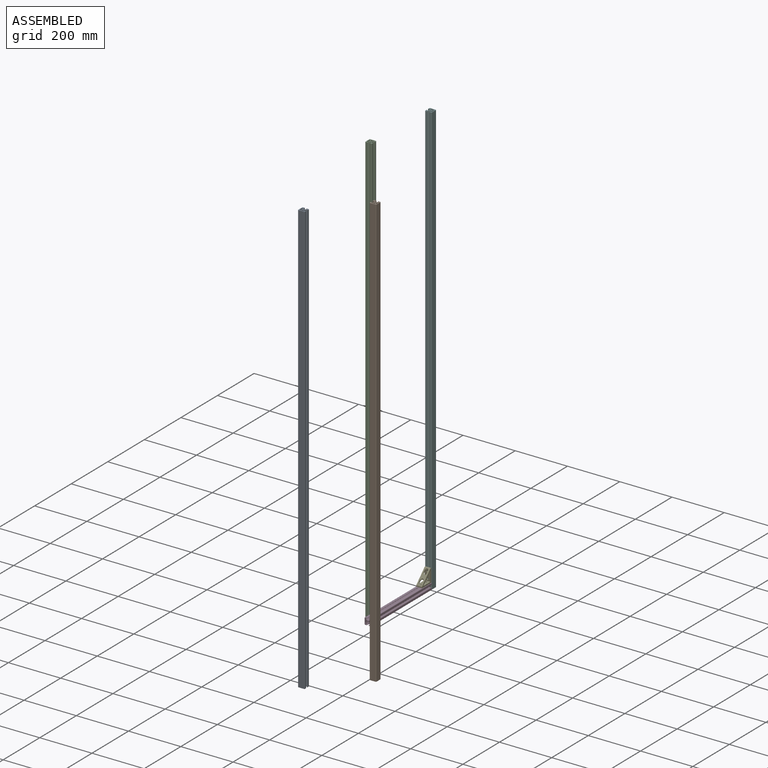
[diagram: assembled view]
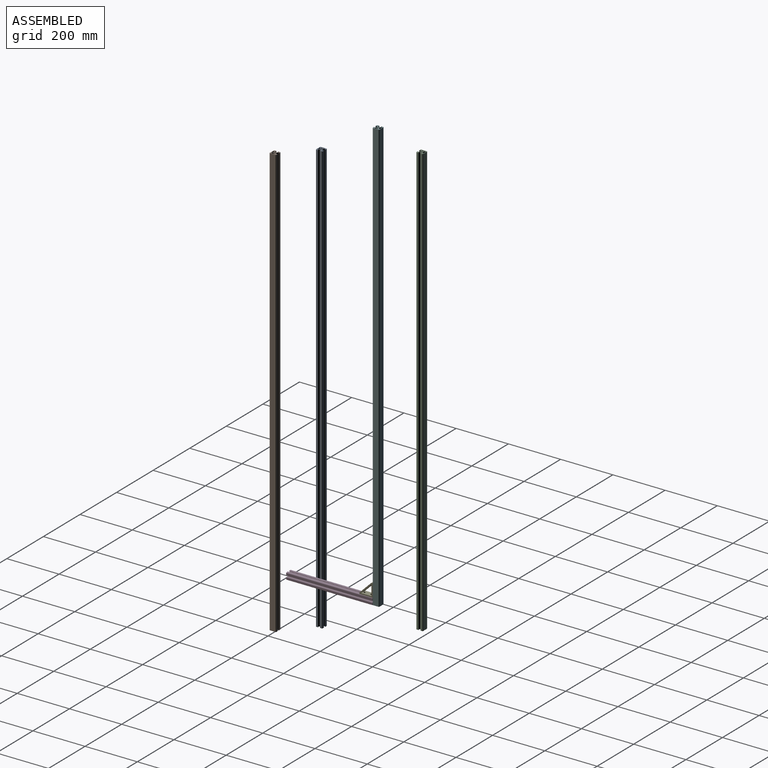
[diagram: assembled view, second angle]
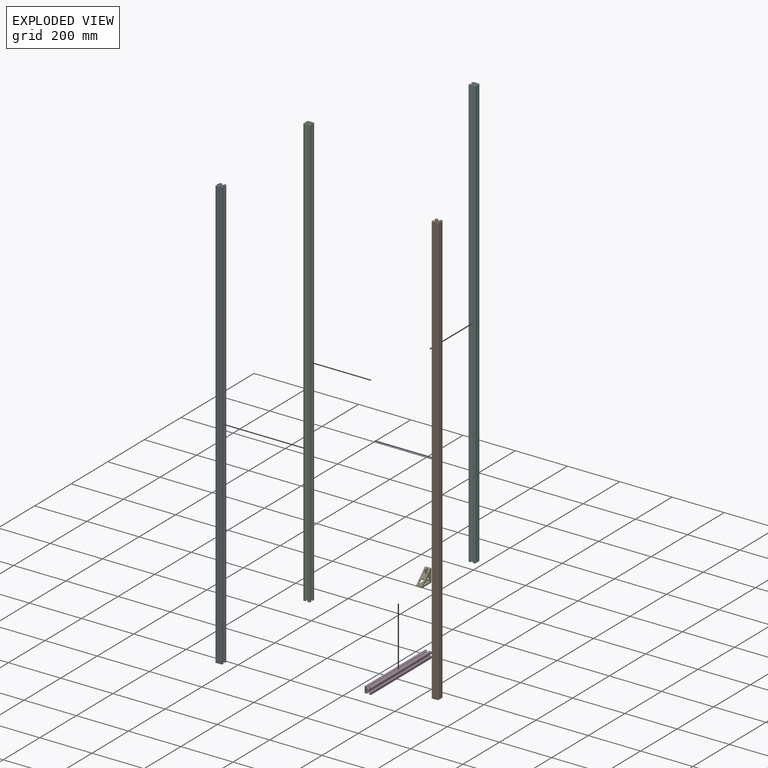
[diagram: exploded view]
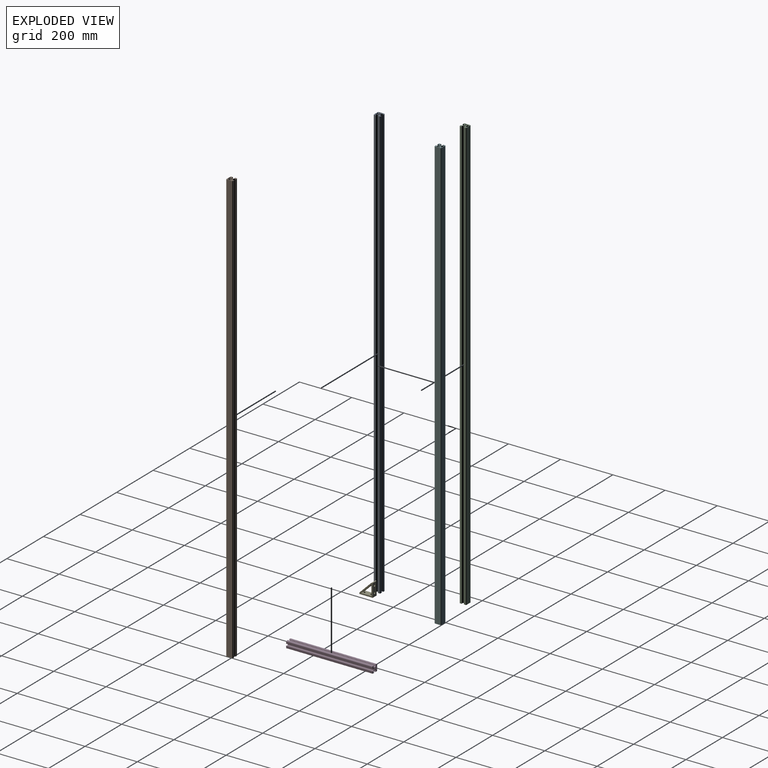
[diagram: exploded view, second angle]
ASSEMBLY  parts=6 mates=2
PART A: 66 faces, bbox 25.4x1651x25.4 mm
  f0: plane 1651x21.18mm, normal (-1,0,0), area 34974.8mm2, adj f6,f7,f64,f65
  f1: plane 1651x6.24mm, normal (0,0,1), area 10295.6mm2, adj f7,f8,f64,f65
  f2: plane 1651x6.24mm, normal (0,0,1), area 10294.7mm2, adj f9,f10,f64,f65
  f3: plane 1651x6.24mm, normal (1,0,0), area 10295.5mm2, adj f10,f11,f64,f65
  f4: plane 1651x6.24mm, normal (1,0,0), area 10295.5mm2, adj f12,f13,f64,f65
  f5: plane 1651x21.18mm, normal (0,0,-1), area 34974.1mm2, adj f6,f13,f64,f65
  f6: cylinder r=2.11mm len=1651mm, axis (0,-1,0), area 5467.4mm2, adj f0,f5,f64,f65
  f7: cylinder r=2.11mm len=1651mm, axis (0,-1,0), area 5467.4mm2, adj f0,f1,f64,f65
  f8: cylinder r=1.1mm len=1651mm, axis (0,-1,0), area 5730.9mm2, adj f1,f18,f64,f65
  f9: cylinder r=1.1mm len=1651mm, axis (0,-1,0), area 5730.9mm2, adj f2,f26,f64,f65
  f10: cylinder r=2.11mm len=1651mm, axis (0,-1,0), area 5467.4mm2, adj f2,f3,f64,f65
  f11: cylinder r=1.1mm len=1651mm, axis (0,-1,0), area 5730.9mm2, adj f3,f27,f64,f65
  f12: cylinder r=1.1mm len=1651mm, axis (0,-1,0), area 5730.9mm2, adj f4,f35,f64,f65
  f13: cylinder r=2.11mm len=1651mm, axis (0,-1,0), area 5467.4mm2, adj f4,f5,f64,f65
  f14: cylinder r=2.6mm len=1651mm, axis (0,-1,0), area 4649.9mm2, adj f53,f54,f64,f65
  f15: cylinder r=2.6mm len=1651mm, axis (0,-1,0), area 4649.9mm2, adj f56,f57,f64,f65
  f16: cylinder r=2.6mm len=1651mm, axis (0,-1,0), area 4649.9mm2, adj f59,f60,f64,f65
  f17: cylinder r=2.6mm len=1651mm, axis (0,-1,0), area 4649.9mm2, adj f62,f63,f64,f65
  f18: plane 1651x2.12mm, normal (0,0,-1), area 3498.5mm2, adj f8,f19,f64,f65
  f19: cylinder r=1.02mm len=1651mm, axis (0,-1,0), area 3952.3mm2, adj f18,f20,f64,f65
  f20: plane 1651x3.31mm, normal (0.71,0,0.71), area 7725.7mm2, adj f19,f21,f64,f65
  f21: cylinder r=3.17mm len=1651mm, axis (0,-1,0), area 4117mm2, adj f20,f22,f64,f65
  f22: plane 1651x3.28mm, normal (0,0,1), area 5413.9mm2, adj f21,f23,f64,f65
  f23: cylinder r=3.17mm len=1651mm, axis (0,-1,0), area 4117mm2, adj f22,f24,f64,f65
  f24: plane 1651x3.31mm, normal (-0.71,0,0.71), area 7725.7mm2, adj f23,f25,f64,f65
  f25: cylinder r=1.02mm len=1651mm, axis (0,-1,0), area 3952.3mm2, adj f24,f26,f64,f65
  f26: plane 1651x2.12mm, normal (0,0,-1), area 3498.3mm2, adj f9,f25,f64,f65
  f27: plane 1651x2.12mm, normal (-1,0,0), area 3497.5mm2, adj f11,f28,f64,f65
  f28: cylinder r=1.02mm len=1651mm, axis (0,-1,0), area 3952.3mm2, adj f27,f29,f64,f65
  f29: plane 1651x3.31mm, normal (0.71,0,-0.71), area 7724.5mm2, adj f28,f30,f64,f65
  f30: cylinder r=3.17mm len=1651mm, axis (0,-1,0), area 4117mm2, adj f29,f31,f64,f65
  f31: plane 1651x3.28mm, normal (1,0,0), area 5413.9mm2, adj f30,f32,f64,f65
  f32: cylinder r=3.17mm len=1651mm, axis (0,-1,0), area 4117mm2, adj f31,f33,f64,f65
  f33: plane 1651x3.31mm, normal (0.71,0,0.71), area 7724.5mm2, adj f32,f34,f64,f65
  f34: cylinder r=1.02mm len=1651mm, axis (0,-1,0), area 3952.3mm2, adj f33,f35,f64,f65
  f35: plane 1651x2.12mm, normal (-1,0,0), area 3497.7mm2, adj f12,f34,f64,f65
  f36: cylinder r=3.17mm len=1651mm, axis (0,-1,0), area 4117mm2, adj f37,f43,f64,f65
  f37: plane 1651x3.28mm, normal (-1,0,0), area 5413.5mm2, adj f36,f38,f64,f65
  f38: cylinder r=3.17mm len=1651mm, axis (0,-1,0), area 4117mm2, adj f37,f39,f64,f65
  f39: plane 1651x3.31mm, normal (-0.71,0,0.71), area 7725.3mm2, adj f38,f40,f64,f65
  f40: cylinder r=1.02mm len=1651mm, axis (0,-1,0), area 3952.3mm2, adj f39,f41,f64,f65
  f41: plane 1651x12.95mm, normal (1,0,0), area 21379.8mm2, adj f40,f42,f64,f65
  f42: cylinder r=1.02mm len=1651mm, axis (0,-1,0), area 3952.3mm2, adj f41,f43,f64,f65
  f43: plane 1651x3.31mm, normal (-0.71,0,-0.71), area 7725.3mm2, adj f36,f42,f64,f65
  f44: cylinder r=1.02mm len=1651mm, axis (0,-1,0), area 3952.3mm2, adj f45,f51,f64,f65
  f45: plane 1651x12.95mm, normal (0,0,1), area 21379.8mm2, adj f44,f46,f64,f65
  f46: cylinder r=1.02mm len=1651mm, axis (0,-1,0), area 3952.3mm2, adj f45,f47,f64,f65
  f47: plane 1651x3.31mm, normal (0.71,0,-0.71), area 7725.3mm2, adj f46,f48,f64,f65
  f48: cylinder r=3.17mm len=1651mm, axis (0,-1,0), area 4117mm2, adj f47,f49,f64,f65
  f49: plane 1651x3.28mm, normal (0,0,-1), area 5413.5mm2, adj f48,f50,f64,f65
  f50: cylinder r=3.17mm len=1651mm, axis (0,-1,0), area 4117mm2, adj f49,f51,f64,f65
  f51: plane 1651x3.31mm, normal (-0.71,0,-0.71), area 7725.3mm2, adj f44,f50,f64,f65
  f52: cylinder r=0.64mm len=1651mm, axis (0,-1,0), area 3549.9mm2, adj f53,f63,f64,f65
  f53: plane 1651x0.63mm, normal (0.71,0,0.71), area 1467.7mm2, adj f14,f52,f64,f65
  f54: plane 1651x0.63mm, normal (-0.71,0,0.71), area 1467.7mm2, adj f14,f55,f64,f65
  f55: cylinder r=0.64mm len=1651mm, axis (0,-1,0), area 3549.9mm2, adj f54,f56,f64,f65
  f56: plane 1651x0.63mm, normal (0.71,0,-0.71), area 1467.7mm2, adj f15,f55,f64,f65
  f57: plane 1651x0.63mm, normal (0.71,0,0.71), area 1467.7mm2, adj f15,f58,f64,f65
  f58: cylinder r=0.64mm len=1651mm, axis (0,-1,0), area 3549.9mm2, adj f57,f59,f64,f65
  f59: plane 1651x0.63mm, normal (-0.71,0,-0.71), area 1467.7mm2, adj f16,f58,f64,f65
  f60: plane 1651x0.63mm, normal (0.71,0,-0.71), area 1467.7mm2, adj f16,f61,f64,f65
  f61: cylinder r=0.64mm len=1651mm, axis (0,-1,0), area 3549.9mm2, adj f60,f62,f64,f65
  f62: plane 1651x0.63mm, normal (-0.71,0,0.71), area 1467.7mm2, adj f17,f61,f64,f65
  f63: plane 1651x0.63mm, normal (-0.71,0,-0.71), area 1467.7mm2, adj f17,f52,f64,f65
  f64: plane 25.4x25.4mm, normal (0,1,0), area 310.1mm2, adj f0,f1,f2,f3,f4,f5,f6,f7
  f65: plane 25.4x25.4mm, normal (0,-1,0), area 310.1mm2, adj f0,f1,f2,f3,f4,f5,f6,f7
PART B: same geometry as A
PART C: same geometry as A
PART D: 70 faces, bbox 25.4x330.2x25.4 mm
  f0: cylinder r=3.17mm len=330.2mm, axis (0,-1,0), area 823.4mm2, adj f1,f43,f44,f69
  f1: plane 330.2x3.28mm, normal (0,0,-1), area 1082.8mm2, adj f0,f2,f44,f69
  f2: cylinder r=3.17mm len=330.2mm, axis (0,-1,0), area 823.4mm2, adj f1,f3,f44,f69
  f3: plane 330.2x3.31mm, normal (0.71,0,-0.71), area 1545.1mm2, adj f2,f4,f44,f69
  f4: cylinder r=1.02mm len=330.2mm, axis (0,-1,0), area 790.5mm2, adj f3,f5,f44,f69
  f5: plane 330.2x2.12mm, normal (0,0,1), area 699.6mm2, adj f4,f6,f44,f69
  f6: cylinder r=1.1mm len=330.2mm, axis (0,-1,0), area 1146.2mm2, adj f5,f7,f44,f69
  f7: plane 330.2x6.24mm, normal (0,0,-1), area 2059mm2, adj f6,f8,f44,f69
  f8: cylinder r=2.11mm len=330.2mm, axis (0,-1,0), area 1093.5mm2, adj f7,f9,f44,f69
  f9: plane 330.2x21.18mm, normal (-1,0,0), area 6994.8mm2, adj f8,f10,f44,f69
  f10: cylinder r=2.11mm len=330.2mm, axis (0,-1,0), area 1093.5mm2, adj f9,f11,f44,f69
  f11: plane 330.2x6.24mm, normal (0,0,1), area 2059mm2, adj f10,f12,f44,f69
  f12: cylinder r=1.1mm len=330.2mm, axis (0,-1,0), area 1146.2mm2, adj f11,f13,f44,f69
  f13: plane 330.2x2.12mm, normal (0,0,-1), area 699.6mm2, adj f12,f14,f44,f69
  f14: cylinder r=1.02mm len=330.2mm, axis (0,-1,0), area 790.5mm2, adj f13,f15,f44,f69
  f15: plane 330.2x3.31mm, normal (0.71,0,0.71), area 1545.2mm2, adj f14,f16,f44,f69
  f16: cylinder r=3.17mm len=330.2mm, axis (0,-1,0), area 823.4mm2, adj f15,f17,f44,f69
  f17: plane 330.2x3.28mm, normal (0,0,1), area 1082.7mm2, adj f16,f18,f44,f69
  f18: cylinder r=3.17mm len=330.2mm, axis (0,-1,0), area 823.4mm2, adj f17,f19,f44,f69
  f19: plane 330.2x3.31mm, normal (-0.71,0,0.71), area 1545.2mm2, adj f18,f20,f44,f69
  f20: cylinder r=1.02mm len=330.2mm, axis (0,-1,0), area 790.5mm2, adj f19,f21,f44,f69
  f21: plane 330.2x2.12mm, normal (0,0,-1), area 699.7mm2, adj f20,f22,f44,f69
  f22: cylinder r=1.1mm len=330.2mm, axis (0,-1,0), area 1146.2mm2, adj f21,f23,f44,f69
  f23: plane 330.2x6.24mm, normal (0,0,1), area 2059mm2, adj f22,f24,f44,f69
  f24: cylinder r=2.11mm len=330.2mm, axis (0,-1,0), area 1093.5mm2, adj f23,f25,f44,f69
  f25: plane 330.2x6.24mm, normal (1,0,0), area 2059mm2, adj f24,f26,f44,f69
  f26: cylinder r=1.1mm len=330.2mm, axis (0,-1,0), area 1146.2mm2, adj f25,f27,f44,f69
  f27: plane 330.2x2.12mm, normal (-1,0,0), area 699.6mm2, adj f26,f28,f44,f69
  f28: cylinder r=1.02mm len=330.2mm, axis (0,-1,0), area 790.5mm2, adj f27,f29,f44,f69
  f29: plane 330.2x3.31mm, normal (0.71,0,-0.71), area 1545.1mm2, adj f28,f30,f44,f69
  f30: cylinder r=3.17mm len=330.2mm, axis (0,-1,0), area 823.4mm2, adj f29,f31,f44,f69
  f31: plane 330.2x3.28mm, normal (1,0,0), area 1082.8mm2, adj f30,f32,f44,f69
  f32: cylinder r=3.17mm len=330.2mm, axis (0,-1,0), area 823.4mm2, adj f31,f33,f44,f69
  f33: plane 330.2x3.31mm, normal (0.71,0,0.71), area 1545.1mm2, adj f32,f34,f44,f69
  f34: cylinder r=1.02mm len=330.2mm, axis (0,-1,0), area 790.5mm2, adj f33,f35,f44,f69
  f35: plane 330.2x2.12mm, normal (-1,0,0), area 699.6mm2, adj f34,f36,f44,f69
  f36: cylinder r=1.1mm len=330.2mm, axis (0,-1,0), area 1146.2mm2, adj f35,f37,f44,f69
  f37: plane 330.2x6.24mm, normal (1,0,0), area 2059mm2, adj f36,f38,f44,f69
  f38: cylinder r=2.11mm len=330.2mm, axis (0,-1,0), area 1093.5mm2, adj f37,f39,f44,f69
  f39: plane 330.2x6.24mm, normal (0,0,-1), area 2059mm2, adj f38,f40,f44,f69
  f40: cylinder r=1.1mm len=330.2mm, axis (0,-1,0), area 1146.2mm2, adj f39,f41,f44,f69
  f41: plane 330.2x2.12mm, normal (0,0,1), area 699.6mm2, adj f40,f42,f44,f69
  f42: cylinder r=1.02mm len=330.2mm, axis (0,-1,0), area 790.5mm2, adj f41,f43,f44,f69
  f43: plane 330.2x3.31mm, normal (-0.71,0,-0.71), area 1545.1mm2, adj f0,f42,f44,f69
  f44: plane 25.4x25.4mm, normal (0,-1,0), area 294.7mm2, adj f0,f1,f2,f3,f4,f5,f6,f7
  f45: cylinder r=3.17mm len=330.2mm, axis (0,-1,0), area 823.4mm2, adj f44,f46,f52,f69
  f46: plane 330.2x3.31mm, normal (-0.71,0,0.71), area 1545.1mm2, adj f44,f45,f47,f69
  f47: cylinder r=1.02mm len=330.2mm, axis (0,-1,0), area 790.6mm2, adj f44,f46,f48,f69
  f48: plane 330.2x12.95mm, normal (1,0,0), area 4276mm2, adj f44,f47,f49,f69
  f49: cylinder r=1.02mm len=330.2mm, axis (0,-1,0), area 790.6mm2, adj f44,f48,f50,f69
  f50: plane 330.2x3.31mm, normal (-0.71,0,-0.71), area 1545.1mm2, adj f44,f49,f51,f69
  f51: cylinder r=3.17mm len=330.2mm, axis (0,-1,0), area 823.4mm2, adj f44,f50,f52,f69
  f52: plane 330.2x3.28mm, normal (-1,0,0), area 1082.9mm2, adj f44,f45,f51,f69
  f53: cylinder r=0.64mm len=330.2mm, axis (0,-1,0), area 710mm2, adj f44,f54,f68,f69
  f54: plane 330.2x0.63mm, normal (0.71,0,0.71), area 293.5mm2, adj f44,f53,f55,f69
  f55: cylinder r=2.6mm len=330.2mm, axis (0,-1,0), area 930mm2, adj f44,f54,f56,f69
  f56: plane 330.2x0.63mm, normal (-0.71,0,0.71), area 293.5mm2, adj f44,f55,f57,f69
  f57: cylinder r=0.64mm len=330.2mm, axis (0,-1,0), area 710mm2, adj f44,f56,f58,f69
  f58: plane 330.2x0.63mm, normal (0.71,0,-0.71), area 293.5mm2, adj f44,f57,f59,f69
  f59: cylinder r=2.6mm len=330.2mm, axis (0,-1,0), area 930mm2, adj f44,f58,f60,f69
  f60: plane 330.2x0.63mm, normal (0.71,0,0.71), area 293.5mm2, adj f44,f59,f61,f69
  f61: cylinder r=0.64mm len=330.2mm, axis (0,-1,0), area 710mm2, adj f44,f60,f62,f69
  f62: plane 330.2x0.63mm, normal (-0.71,0,-0.71), area 293.5mm2, adj f44,f61,f63,f69
  f63: cylinder r=2.6mm len=330.2mm, axis (0,-1,0), area 930mm2, adj f44,f62,f64,f69
  f64: plane 330.2x0.63mm, normal (0.71,0,-0.71), area 293.5mm2, adj f44,f63,f65,f69
  f65: cylinder r=0.64mm len=330.2mm, axis (0,-1,0), area 710mm2, adj f44,f64,f66,f69
  f66: plane 330.2x0.63mm, normal (-0.71,0,0.71), area 293.5mm2, adj f44,f65,f67,f69
  f67: cylinder r=2.6mm len=330.2mm, axis (0,-1,0), area 930mm2, adj f44,f66,f68,f69
  f68: plane 330.2x0.63mm, normal (-0.71,0,-0.71), area 293.5mm2, adj f44,f53,f67,f69
  f69: plane 25.4x25.4mm, normal (0,1,0), area 294.7mm2, adj f0,f1,f2,f3,f4,f5,f6,f7
PART E: 28 faces, bbox 22.2x50.8x50.8 mm
  f0: cylinder r=6.35mm len=12.7mm, axis (0,1,0), area 40.2mm2, adj f1,f3,f18,f23
  f1: cylinder r=6.35mm len=12.7mm, axis (0,0,-1), area 41.4mm2, adj f0,f2,f23
  f2: cylinder r=6.35mm len=12.7mm, axis (0,1,0), area 106.9mm2, adj f1,f3,f4
  f3: cylinder r=6.35mm len=12.7mm, axis (0,0,-1), area 106.9mm2, adj f0,f2,f4
  f4: plane 43.23x43.23mm, normal (0,-0.71,0.71), area 831.8mm2, adj f2,f3,f5,f10,f11,f17,f26,f27
  f5: cylinder r=4.78mm len=22.23mm, axis (1,0,0), area 83.4mm2, adj f4,f6,f11,f17
  f6: plane 22.23x2.8mm, normal (0,0,1), area 62.2mm2, adj f5,f7,f11,f17
  f7: plane 50.8x22.23mm, normal (0,1,0), area 1049mm2, adj f6,f8,f11,f17,f19,f20,f21,f22
  f8: plane 50.8x22.23mm, normal (0,0,-1), area 1049mm2, adj f7,f9,f11,f13,f14,f15,f16,f17
  f9: plane 22.23x2.8mm, normal (0,-1,0), area 62.2mm2, adj f8,f10,f11,f17
  f10: cylinder r=4.78mm len=22.23mm, axis (1,0,0), area 83.4mm2, adj f4,f9,f11,f17
  f11: plane 50.8x50.8mm, normal (1,0,0), area 749.4mm2, adj f4,f5,f6,f7,f8,f9,f10,f12
  f12: plane 39.68x22.23mm, normal (0,0,1), area 794mm2, adj f11,f13,f14,f15,f16,f17,f18,f23
  f13: cylinder r=3.57mm len=7.14mm, axis (0,0,1), area 53.5mm2, adj f8,f12,f14
  f14: cylinder r=3.57mm len=7.14mm, axis (0,0,1), area 53.5mm2, adj f8,f12,f13
  f15: cylinder r=3.57mm len=7.14mm, axis (0,0,1), area 53.5mm2, adj f8,f12,f16
  f16: cylinder r=3.57mm len=7.14mm, axis (0,0,1), area 53.5mm2, adj f8,f12,f15
  f17: plane 50.8x50.8mm, normal (-1,0,0), area 749.4mm2, adj f4,f5,f6,f7,f8,f9,f10,f12
  f18: plane 39.68x22.23mm, normal (0,-1,0), area 794mm2, adj f0,f11,f12,f17,f19,f20,f21,f22
  f19: cylinder r=3.57mm len=7.14mm, axis (0,-1,0), area 53.5mm2, adj f7,f18,f20
  f20: cylinder r=3.57mm len=7.14mm, axis (0,-1,0), area 53.5mm2, adj f7,f18,f19
  f21: cylinder r=3.57mm len=7.14mm, axis (0,-1,0), area 53.5mm2, adj f7,f18,f22
  f22: cylinder r=3.57mm len=7.14mm, axis (0,-1,0), area 53.5mm2, adj f7,f18,f21
  f23: plane 39.27x39.27mm, normal (0,0.71,-0.71), area 808.9mm2, adj f0,f1,f11,f12,f17,f18,f24,f25
  f24: cylinder r=6.35mm len=12.7mm, axis (0,0,-1), area 40.2mm2, adj f12,f23,f25,f27
  f25: cylinder r=6.35mm len=12.7mm, axis (0,1,0), area 41.4mm2, adj f23,f24,f26
  f26: cylinder r=6.35mm len=12.7mm, axis (0,0,-1), area 106.9mm2, adj f4,f25,f27
  f27: cylinder r=6.35mm len=12.7mm, axis (0,1,0), area 106.9mm2, adj f4,f24,f26
PART F: same geometry as A
PLACE A rot(axis=(0.58,0.58,0.58),120deg) t=(-102.84,132.37,1285.4)mm
PLACE B rot(axis=(0,0.71,0.71),180deg) t=(164.38,142.31,1377.93)mm
PLACE C rot(axis=(1,0,0),90deg) t=(-110.81,511.36,1374.47)mm
PLACE D t=(121.65,163.87,-1388.71)mm
PLACE E t=(122.17,494.07,-1376.01)mm
PLACE F rot(axis=(0.58,-0.58,-0.58),120deg) t=(121.65,506.77,1546.09)mm
MATE parallel F.f4 <-> D.f40  axis (0,-1,0) through (126,494.07,-1400.31)mm
MATE parallel E.f8 <-> D.f11  axis (0,0,-1) through (111.05,494.07,-1376.01)mm
